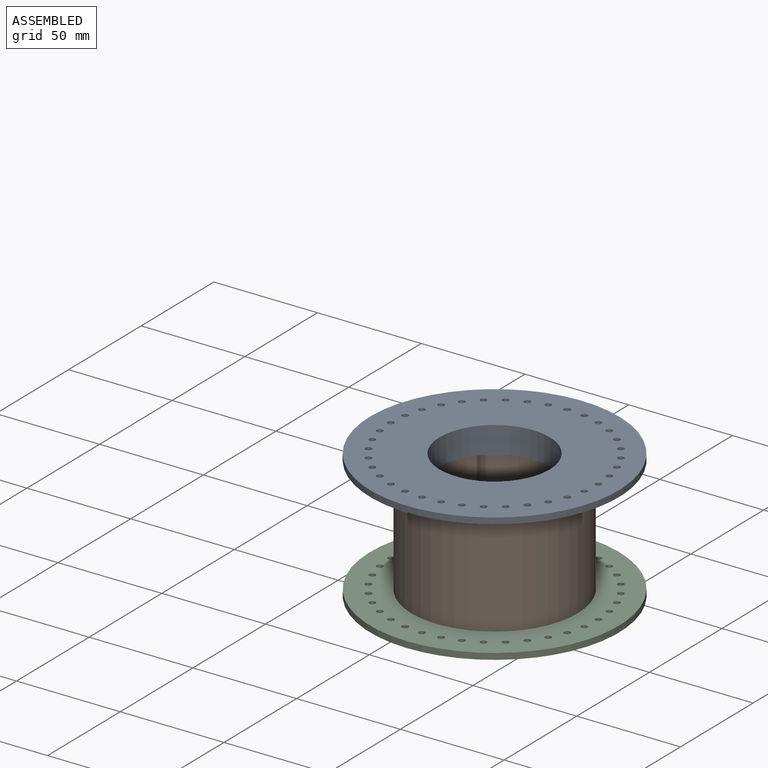
[diagram: assembled view]
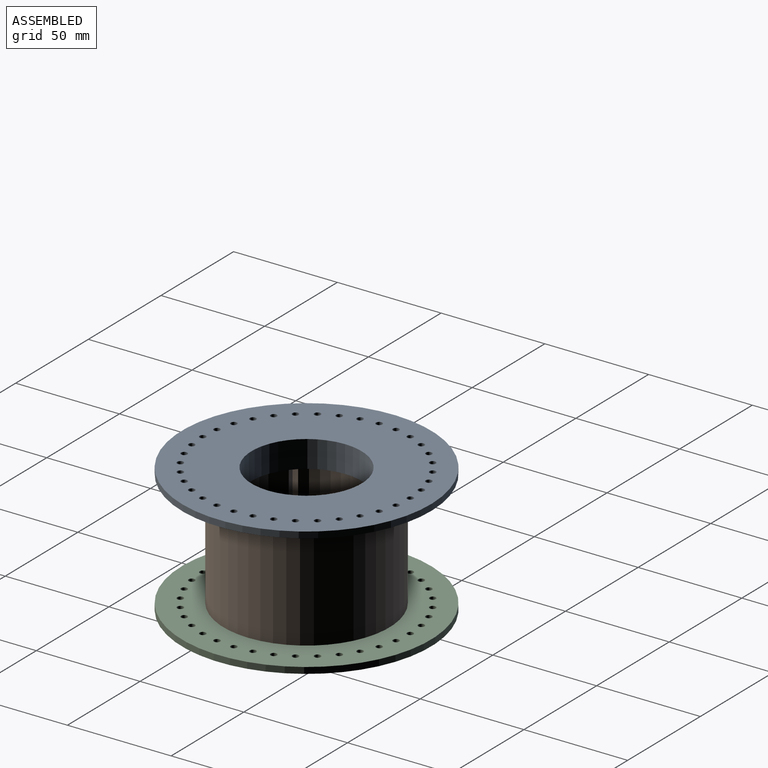
[diagram: assembled view, second angle]
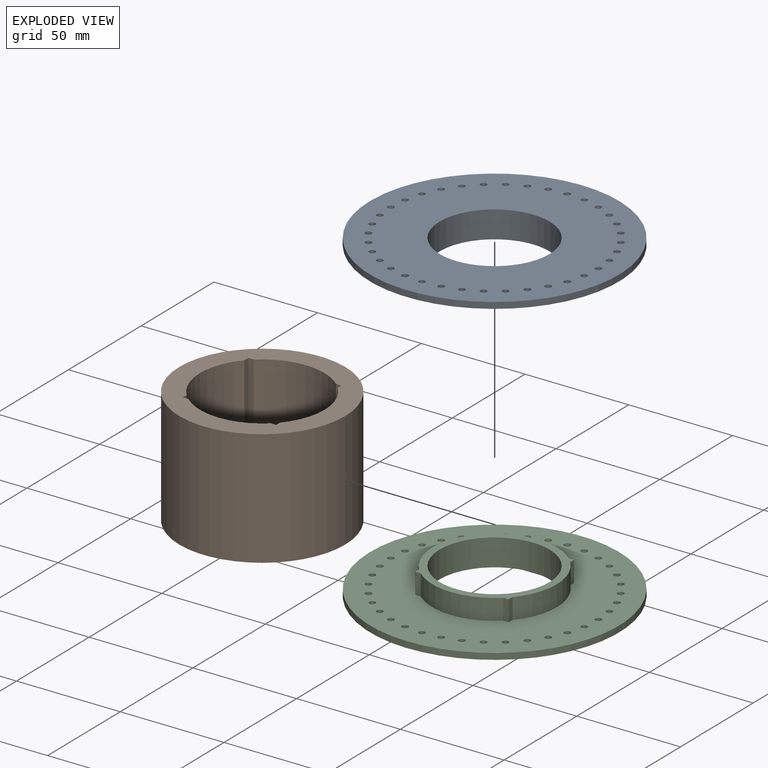
[diagram: exploded view]
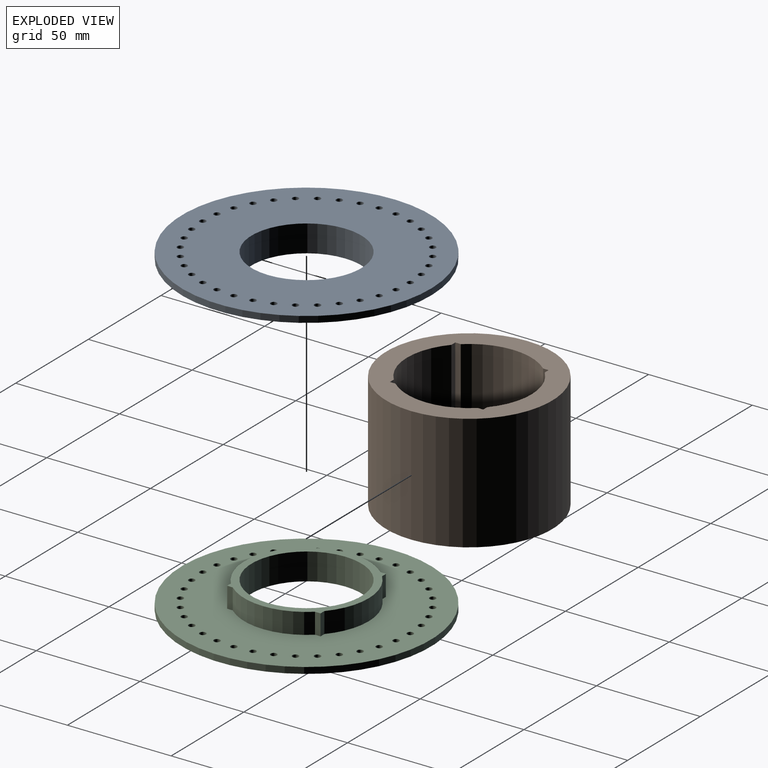
[diagram: exploded view, second angle]
ASSEMBLY  parts=3 mates=3
PART A: 53 faces, bbox 120x120x13 mm
  f0: plane 120x120mm, normal (0,0,1), area 8214.3mm2, adj f1,f2,f3,f4,f5,f6,f7,f8
  f1: cylinder r=30mm len=39.69mm, axis (0,0,-1), area 433.6mm2, adj f0,f44,f48,f51
  f2: cylinder r=30mm len=39.69mm, axis (0,0,-1), area 433.6mm2, adj f0,f44,f50,f52
  f3: cylinder r=30mm len=39.69mm, axis (0,0,-1), area 433.6mm2, adj f0,f44,f46,f47
  f4: cylinder r=30mm len=39.69mm, axis (0,0,-1), area 433.6mm2, adj f0,f44,f45,f49
  f5: cylinder r=1.5mm len=3mm, axis (0,0,-1), area 28.3mm2, adj f0,f42
  f6: cylinder r=1.5mm len=3mm, axis (0,0,-1), area 28.3mm2, adj f0,f42
  f7: cylinder r=1.5mm len=3mm, axis (0,0,-1), area 28.3mm2, adj f0,f42
  f8: cylinder r=1.5mm len=3mm, axis (0,0,-1), area 28.3mm2, adj f0,f42
  f9: cylinder r=1.5mm len=3mm, axis (0,0,-1), area 28.3mm2, adj f0,f42
  f10: cylinder r=1.5mm len=3mm, axis (0,0,-1), area 28.3mm2, adj f0,f42
  f11: cylinder r=1.5mm len=3mm, axis (0,0,-1), area 28.3mm2, adj f0,f42
  f12: cylinder r=1.5mm len=3mm, axis (0,0,-1), area 28.3mm2, adj f0,f42
  f13: cylinder r=1.5mm len=3mm, axis (0,0,-1), area 28.3mm2, adj f0,f42
  f14: cylinder r=1.5mm len=3mm, axis (0,0,-1), area 28.3mm2, adj f0,f42
  f15: cylinder r=1.5mm len=3mm, axis (0,0,-1), area 28.3mm2, adj f0,f42
  f16: cylinder r=1.5mm len=3mm, axis (0,0,-1), area 28.3mm2, adj f0,f42
  f17: cylinder r=1.5mm len=3mm, axis (0,0,-1), area 28.3mm2, adj f0,f42
  f18: cylinder r=1.5mm len=3mm, axis (0,0,-1), area 28.3mm2, adj f0,f42
  f19: cylinder r=1.5mm len=3mm, axis (0,0,-1), area 28.3mm2, adj f0,f42
  f20: cylinder r=1.5mm len=3mm, axis (0,0,-1), area 28.3mm2, adj f0,f42
  f21: cylinder r=1.5mm len=3mm, axis (0,0,-1), area 28.3mm2, adj f0,f42
  f22: cylinder r=1.5mm len=3mm, axis (0,0,-1), area 28.3mm2, adj f0,f42
  f23: cylinder r=1.5mm len=3mm, axis (0,0,-1), area 28.3mm2, adj f0,f42
  f24: cylinder r=1.5mm len=3mm, axis (0,0,-1), area 28.3mm2, adj f0,f42
  f25: cylinder r=1.5mm len=3mm, axis (0,0,-1), area 28.3mm2, adj f0,f42
  f26: cylinder r=1.5mm len=3mm, axis (0,0,-1), area 28.3mm2, adj f0,f42
  f27: cylinder r=1.5mm len=3mm, axis (0,0,-1), area 28.3mm2, adj f0,f42
  f28: cylinder r=1.5mm len=3mm, axis (0,0,-1), area 28.3mm2, adj f0,f42
  f29: cylinder r=1.5mm len=3mm, axis (0,0,-1), area 28.3mm2, adj f0,f42
  f30: cylinder r=1.5mm len=3mm, axis (0,0,-1), area 28.3mm2, adj f0,f42
  f31: cylinder r=1.5mm len=3mm, axis (0,0,-1), area 28.3mm2, adj f0,f42
  f32: cylinder r=1.5mm len=3mm, axis (0,0,-1), area 28.3mm2, adj f0,f42
  f33: cylinder r=1.5mm len=3mm, axis (0,0,-1), area 28.3mm2, adj f0,f42
  f34: cylinder r=1.5mm len=3mm, axis (0,0,-1), area 28.3mm2, adj f0,f42
  f35: cylinder r=1.5mm len=3mm, axis (0,0,-1), area 28.3mm2, adj f0,f42
  f36: cylinder r=1.5mm len=3mm, axis (0,0,-1), area 28.3mm2, adj f0,f42
  f37: cylinder r=1.5mm len=3mm, axis (0,0,-1), area 28.3mm2, adj f0,f42
  f38: cylinder r=1.5mm len=3mm, axis (0,0,-1), area 28.3mm2, adj f0,f42
  f39: cylinder r=1.5mm len=3mm, axis (0,0,-1), area 28.3mm2, adj f0,f42
  f40: cylinder r=1.5mm len=3mm, axis (0,0,-1), area 28.3mm2, adj f0,f42
  f41: cylinder r=60mm len=120mm, axis (0,0,-1), area 1131mm2, adj f0,f42
  f42: plane 120x120mm, normal (0,0,-1), area 8849.1mm2, adj f5,f6,f7,f8,f9,f10,f11,f12
  f43: cylinder r=26.5mm len=53mm, axis (0,0,1), area 2164.6mm2, adj f42,f44
  f44: plane 60x60mm, normal (0,0,1), area 634.8mm2, adj f1,f2,f3,f4,f43,f45,f46,f47
  f45: plane 10x2.66mm, normal (1,0,0), area 26.6mm2, adj f0,f4,f44,f46
  f46: plane 10x2.66mm, normal (0,1,0), area 26.6mm2, adj f0,f3,f44,f45
  f47: plane 10x2.66mm, normal (0,1,0), area 26.6mm2, adj f0,f3,f44,f48
  f48: plane 10x2.66mm, normal (-1,0,0), area 26.6mm2, adj f0,f1,f44,f47
  f49: plane 10x2.66mm, normal (1,0,0), area 26.6mm2, adj f0,f4,f44,f50
  f50: plane 10x2.66mm, normal (0,-1,0), area 26.6mm2, adj f0,f2,f44,f49
  f51: plane 10x2.66mm, normal (-1,0,0), area 26.6mm2, adj f0,f1,f44,f52
  f52: plane 10x2.66mm, normal (0,-1,0), area 26.6mm2, adj f0,f2,f44,f51
PART B: 15 faces, bbox 80x80x56 mm
  f0: plane 80x80mm, normal (0,0,1), area 2185.6mm2, adj f2,f3,f4,f5,f6,f7,f8,f9
  f1: plane 80x80mm, normal (0,0,-1), area 2185.6mm2, adj f2,f3,f4,f5,f6,f7,f8,f9
  f2: cylinder r=30mm len=56mm, axis (0,0,-1), area 2428.4mm2, adj f0,f1,f9,f13
  f3: cylinder r=30mm len=56mm, axis (0,0,-1), area 2428.4mm2, adj f0,f1,f10,f12
  f4: cylinder r=40mm len=80mm, axis (0,0,-1), area 14074.3mm2, adj f0,f1
  f5: cylinder r=30mm len=56mm, axis (0,0,1), area 2428.4mm2, adj f0,f1,f8,f11
  f6: cylinder r=30mm len=56mm, axis (0,0,-1), area 2428.4mm2, adj f0,f1,f7,f14
  f7: plane 56x2.66mm, normal (0,1,0), area 148.8mm2, adj f0,f1,f6,f8
  f8: plane 56x2.66mm, normal (1,0,0), area 148.8mm2, adj f0,f1,f5,f7
  f9: plane 56x2.66mm, normal (-1,0,0), area 148.8mm2, adj f0,f1,f2,f10
  f10: plane 56x2.66mm, normal (0,-1,0), area 148.8mm2, adj f0,f1,f3,f9
  f11: plane 56x2.66mm, normal (1,0,0), area 148.8mm2, adj f0,f1,f5,f12
  f12: plane 56x2.66mm, normal (0,-1,0), area 148.8mm2, adj f0,f1,f3,f11
  f13: plane 56x2.66mm, normal (-1,0,0), area 148.8mm2, adj f0,f1,f2,f14
  f14: plane 56x2.66mm, normal (0,1,0), area 148.8mm2, adj f0,f1,f6,f13
PART C: same geometry as A
PLACE A rot(axis=(1,0,0),180deg) t=(-87.76,-81.19,45.02)mm
PLACE B t=(-87.76,-81.19,-13.98)mm
PLACE C t=(-87.76,-81.19,-16.98)mm
MATE parallel B.f2 <-> A.f1  axis (0,0,1) through (-87.76,-81.19,42.02)mm
MATE parallel B.f8 <-> C.f51  axis (1,0,0) through (-110.26,-102.36,14.02)mm
MATE parallel C.f1 <-> B.f2  axis (0,0,1) through (-87.76,-81.19,-13.98)mm
